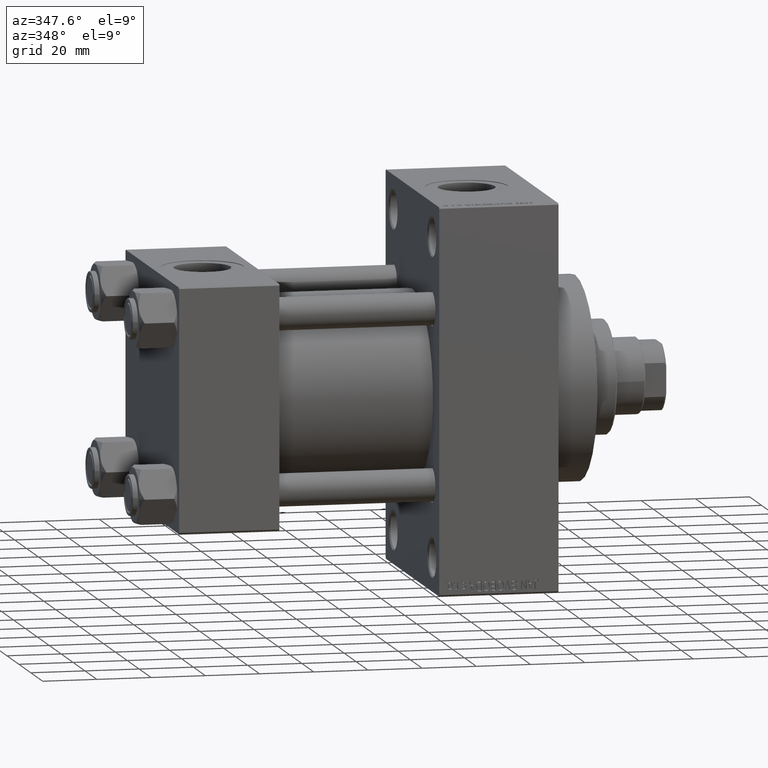
[diagram: clean part render]
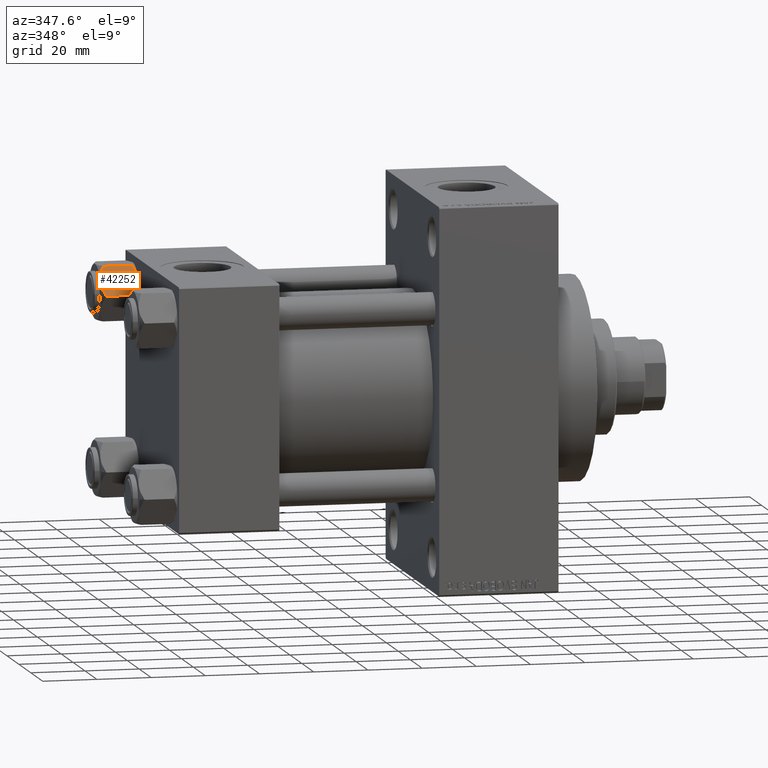
[diagram: same view with one face highlighted and labeled with its STEP entity id]
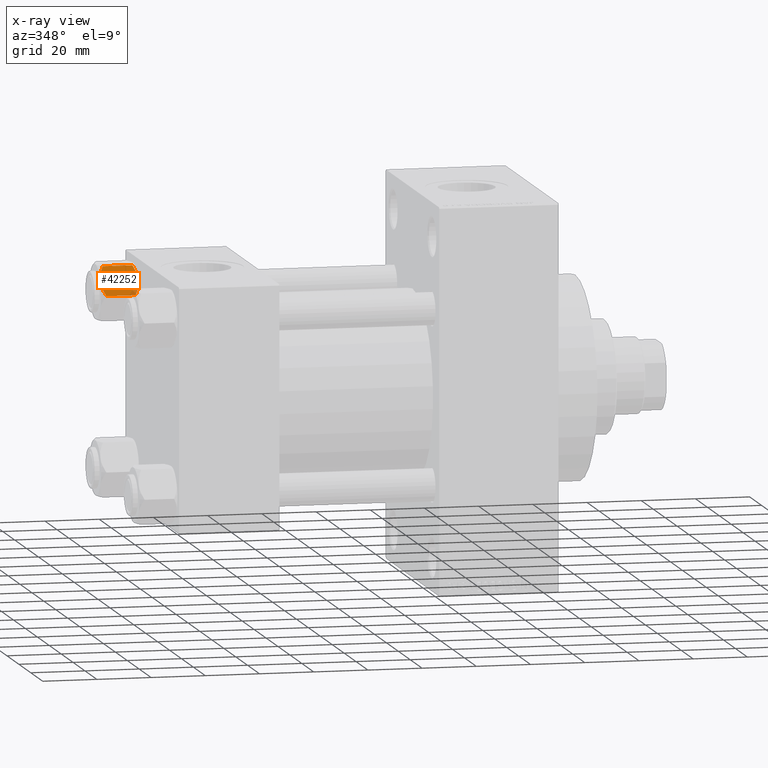
[diagram: x-ray of the same camera — body ghosted, the highlighted face saturated]
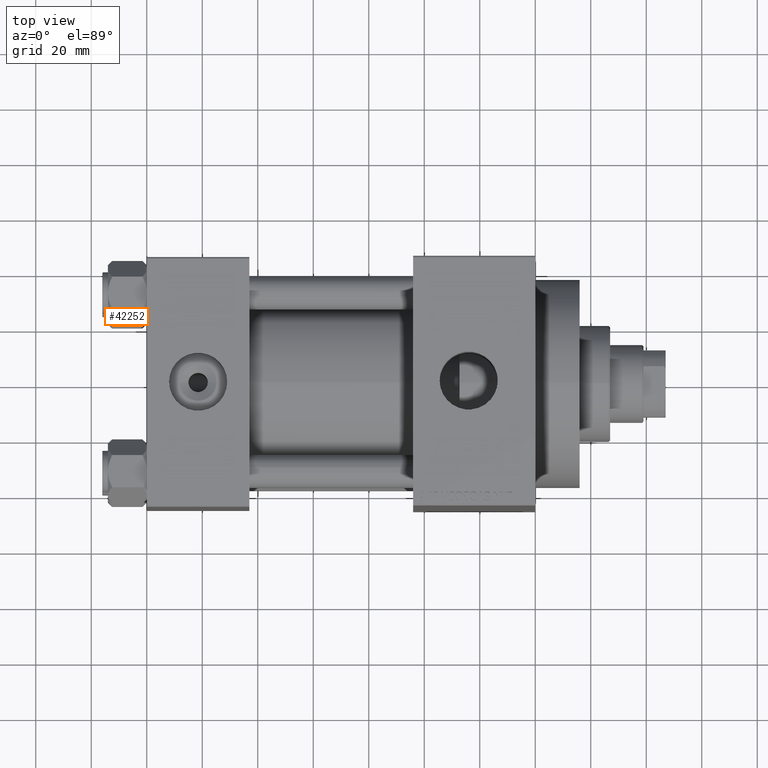
[diagram: same view with one face highlighted and labeled with its STEP entity id]
A machine part, auxiliary view. The second image highlights one B-rep face of the part: STEP entity #42252.
The next image is the same camera in x-ray: the body ghosted, the highlighted face saturated — about 3% of this face is hidden behind the body in this view.
A second angle (top view) of the same face is appended — the face is thin or edge-on in the first view.
In plain terms, the highlighted planar face has unit normal (0, 0.866, -0.5).
Its self-contained STEP definition (entity closure, byte-faithful):
#223 = ORIENTED_EDGE ( 'NONE', *, *, #2169, .F. ) ;
#521 = CARTESIAN_POINT ( 'NONE',  ( -6.733375043383495573, -8.463882702393842550, -0.7114554706434480513 ) ) ;
#2146 = CARTESIAN_POINT ( 'NONE',  ( -5.810000000000000497, -10.06321519197517844, -14.00000000000000000 ) ) ;
#2169 = EDGE_CURVE ( 'NONE', #34451, #14791, #35081, .T. ) ;
#2316 = CARTESIAN_POINT ( 'NONE',  ( -8.715000000000006963, -5.031607595987586556, 0.000000000000000000 ) ) ;
#2331 = CARTESIAN_POINT ( 'NONE',  ( -9.220295946303428636, -4.156409344131446026, -14.00000000000000711 ) ) ;
#2396 = EDGE_CURVE ( 'NONE', #5533, #34451, #9342, .T. ) ;
#3373 = CARTESIAN_POINT ( 'NONE',  ( -5.810000000000000497, -10.06321519197517844, -12.44321519197518633 ) ) ;
#4487 = DIRECTION ( 'NONE',  ( 0.8660254037844390407, 0.4999999999999995004, 0.000000000000000000 ) ) ;
#5287 = ORIENTED_EDGE ( 'NONE', *, *, #7804, .T. ) ;
#5533 = VERTEX_POINT ( 'NONE', #37014 ) ;
#5597 = VECTOR ( 'NONE', #35775, 1000.000000000000000 ) ;
#6306 = EDGE_CURVE ( 'NONE', #11030, #8297, #17026, .T. ) ;
#6416 = CARTESIAN_POINT ( 'NONE',  ( -8.969430103550386946, -4.590921729663310025, 6.662949392646161370E-15 ) ) ;
#7804 = EDGE_CURVE ( 'NONE', #40243, #8297, #42229, .T. ) ;
#7911 = CARTESIAN_POINT ( 'NONE',  ( -5.810000000000000497, -10.06321519197517844, -1.556784808024813893 ) ) ;
#8297 = VERTEX_POINT ( 'NONE', #15871 ) ;
#9342 = B_SPLINE_CURVE_WITH_KNOTS ( 'NONE', 3,
 ( #27868, #2331, #31448, #46004, #41946, #13294 ),
 .UNSPECIFIED., .F., .F.,
 ( 4, 2, 4 ),
 ( 0.006022845781655596781, 0.009013049135303641962, 0.01200325248895168714 ),
 .UNSPECIFIED. ) ;
#10675 = CARTESIAN_POINT ( 'NONE',  ( -5.810000000000000497, -10.06321519197517844, -12.44321519197518633 ) ) ;
#11030 = VERTEX_POINT ( 'NONE', #2316 ) ;
#11907 = EDGE_CURVE ( 'NONE', #14791, #11030, #17226, .T. ) ;
#12387 = EDGE_CURVE ( 'NONE', #40243, #5533, #32027, .T. ) ;
#13294 = CARTESIAN_POINT ( 'NONE',  ( -11.61999999999999922, 6.270720075510426383E-15, -12.44321519197518988 ) ) ;
#14282 = CARTESIAN_POINT ( 'NONE',  ( -11.61999999999999922, 6.270720075409452187E-15, -1.556784808024810562 ) ) ;
#14347 = CARTESIAN_POINT ( 'NONE',  ( -8.715000000000006963, -5.031607595987586556, -14.00000000000000000 ) ) ;
#14603 = CARTESIAN_POINT ( 'NONE',  ( -6.265018354709776638, -9.275100283241451748, -1.101766453314952043 ) ) ;
#14791 = VERTEX_POINT ( 'NONE', #23283 ) ;
#15092 = ORIENTED_EDGE ( 'NONE', *, *, #12387, .F. ) ;
#15871 = CARTESIAN_POINT ( 'NONE',  ( -5.810000000000000497, -10.06321519197517844, -1.556784808024813893 ) ) ;
#16567 = AXIS2_PLACEMENT_3D ( 'NONE', #19773, #4487, #19056 ) ;
#17026 = B_SPLINE_CURVE_WITH_KNOTS ( 'NONE', 3,
 ( #25842, #29179, #29878, #521, #14603, #7911 ),
 .UNSPECIFIED., .F., .F.,
 ( 4, 2, 4 ),
 ( 0.006022845781655586372, 0.009013049135303635023, 0.01200325248895168367 ),
 .UNSPECIFIED. ) ;
#17226 = B_SPLINE_CURVE_WITH_KNOTS ( 'NONE', 3,
 ( #14282, #28852, #29316, #24584, #43408, #39108, #6416, #44337 ),
 .UNSPECIFIED., .F., .F.,
 ( 4, 2, 2, 4 ),
 ( 2.544312114893457383E-07, 0.003011550106433538623, 0.004517197944044561847, 0.006022845781655586372 ),
 .UNSPECIFIED. ) ;
#17930 = CARTESIAN_POINT ( 'NONE',  ( -8.460569896449619876, -5.472293462311856871, -14.00000000000000888 ) ) ;
#18628 = CARTESIAN_POINT ( 'NONE',  ( -6.265545725125283738, -9.274186850887380373, -12.89876091710046779 ) ) ;
#18811 = PLANE ( 'NONE',  #16567 ) ;
#19056 = DIRECTION ( 'NONE',  ( -0.4999999999999994449, 0.8660254037844389297, 0.000000000000000000 ) ) ;
#19080 = CARTESIAN_POINT ( 'NONE',  ( -11.61999999999999922, 6.270720075510426383E-15, -12.44321519197518988 ) ) ;
#19773 = CARTESIAN_POINT ( 'NONE',  ( -5.810000000000000497, -10.06321519197517844, -14.00000000000000000 ) ) ;
#19966 = ORIENTED_EDGE ( 'NONE', *, *, #2396, .F. ) ;
#20017 = ORIENTED_EDGE ( 'NONE', *, *, #6306, .F. ) ;
#20298 = DIRECTION ( 'NONE',  ( -0.000000000000000000, -0.000000000000000000, 1.000000000000000000 ) ) ;
#21992 = CARTESIAN_POINT ( 'NONE',  ( -6.731401448974989599, -8.467301068182909063, -13.28585617404753272 ) ) ;
#23283 = CARTESIAN_POINT ( 'NONE',  ( -11.61999999999999922, 6.270720075409452187E-15, -1.556784808024810562 ) ) ;
#24584 = CARTESIAN_POINT ( 'NONE',  ( -9.974696630283190757, -2.849749030213787115, -0.3002673809867329457 ) ) ;
#25113 = CARTESIAN_POINT ( 'NONE',  ( -8.202333004087902779, -5.919572880271047666, -13.96005881939309745 ) ) ;
#25842 = CARTESIAN_POINT ( 'NONE',  ( -8.715000000000006963, -5.031607595987586556, 0.000000000000000000 ) ) ;
#27150 = VECTOR ( 'NONE', #20298, 1000.000000000000000 ) ;
#27868 = CARTESIAN_POINT ( 'NONE',  ( -8.715000000000006963, -5.031607595987586556, -14.00000000000000000 ) ) ;
#28852 = CARTESIAN_POINT ( 'NONE',  ( -11.16445427487471420, -0.7890283410877914072, -1.101239082899528432 ) ) ;
#29179 = CARTESIAN_POINT ( 'NONE',  ( -8.209704053696567527, -5.906805847843720869, 6.159623592433269699E-15 ) ) ;
#29316 = CARTESIAN_POINT ( 'NONE',  ( -10.69859855102500923, -1.595914123792257611, -0.7141438259524607313 ) ) ;
#29385 = CARTESIAN_POINT ( 'NONE',  ( -7.700834831386346835, -6.788193195293090731, -13.80960203119266438 ) ) ;
#29878 = CARTESIAN_POINT ( 'NONE',  ( -7.713000053756304375, -6.767122412062951398, -0.1545239700039803266 ) ) ;
#30505 = FACE_OUTER_BOUND ( 'NONE', #39309, .T. ) ;
#31448 = CARTESIAN_POINT ( 'NONE',  ( -9.716999946243698005, -3.296092779912219939, -13.84547602999602667 ) ) ;
#31507 = CARTESIAN_POINT ( 'NONE',  ( -11.61999999999999922, 6.288644352490894150E-15, -14.00000000000000000 ) ) ;
#32027 = B_SPLINE_CURVE_WITH_KNOTS ( 'NONE', 3,
 ( #3373, #18628, #21992, #36065, #29385, #25113, #17930, #14347 ),
 .UNSPECIFIED., .F., .F.,
 ( 4, 2, 2, 4 ),
 ( 2.544312114906334931E-07, 0.003011550106433543393, 0.004517197944044570521, 0.006022845781655596781 ),
 .UNSPECIFIED. ) ;
#34451 = VERTEX_POINT ( 'NONE', #19080 ) ;
#34986 = ORIENTED_EDGE ( 'NONE', *, *, #11907, .F. ) ;
#35081 = LINE ( 'NONE', #31507, #5597 ) ;
#35775 = DIRECTION ( 'NONE',  ( -0.000000000000000000, -0.000000000000000000, 1.000000000000000000 ) ) ;
#36065 = CARTESIAN_POINT ( 'NONE',  ( -7.455303369716809847, -7.213466161761383333, -13.69973261901326644 ) ) ;
#37014 = CARTESIAN_POINT ( 'NONE',  ( -8.715000000000006963, -5.031607595987586556, -14.00000000000000000 ) ) ;
#39108 = CARTESIAN_POINT ( 'NONE',  ( -9.227666995912100489, -4.143642311704120118, -0.03994118060690279165 ) ) ;
#39309 = EDGE_LOOP ( 'NONE', ( #15092, #5287, #20017, #34986, #223, #19966 ) ) ;
#40243 = VERTEX_POINT ( 'NONE', #10675 ) ;
#41946 = CARTESIAN_POINT ( 'NONE',  ( -11.16498164529022219, -0.7881149087337223635, -12.89823354668505040 ) ) ;
#42229 = LINE ( 'NONE', #2146, #27150 ) ;
#42252 = ADVANCED_FACE ( 'NONE', ( #30505 ), #18811, .F. ) ;
#43408 = CARTESIAN_POINT ( 'NONE',  ( -9.729165168613654657, -3.275021996682076608, -0.1903979688073365595 ) ) ;
#44337 = CARTESIAN_POINT ( 'NONE',  ( -8.715000000000006963, -5.031607595987586556, 0.000000000000000000 ) ) ;
#46004 = CARTESIAN_POINT ( 'NONE',  ( -10.69662495661650148, -1.599332489581326344, -13.28854452935655317 ) ) ;